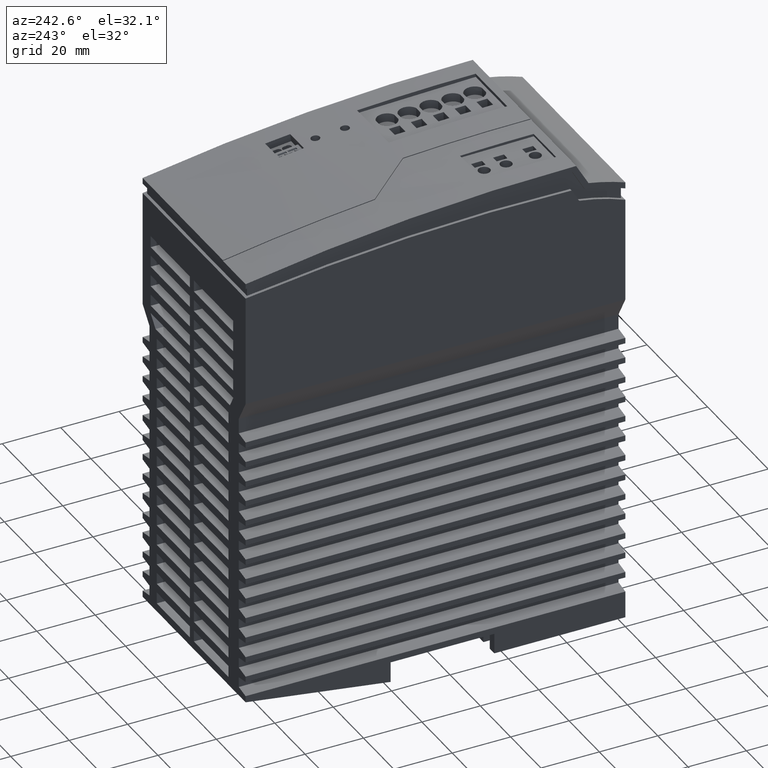
[diagram: clean part render]
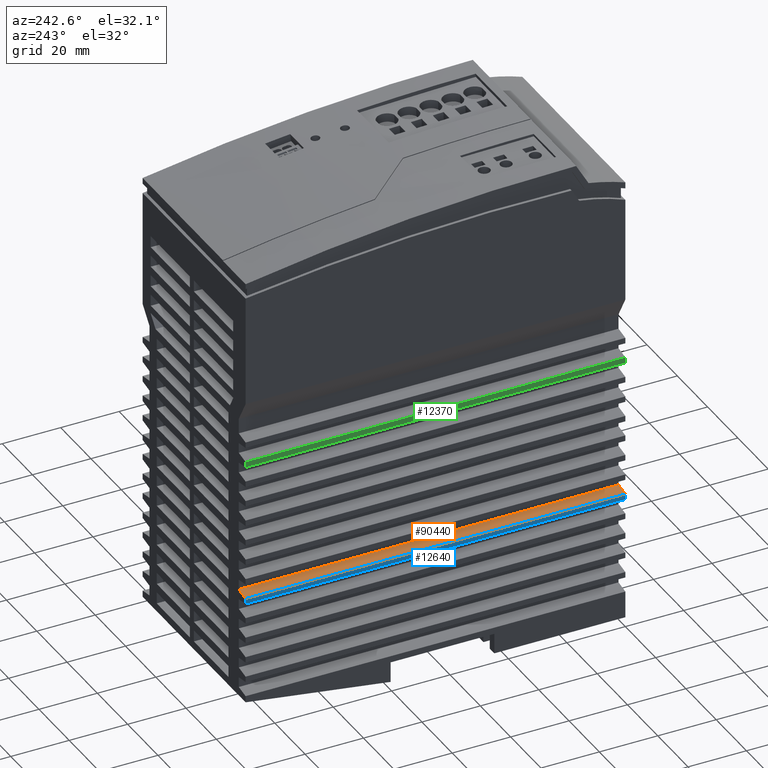
[diagram: same view with three faces highlighted in distinct colors, each labeled with its STEP entity id]
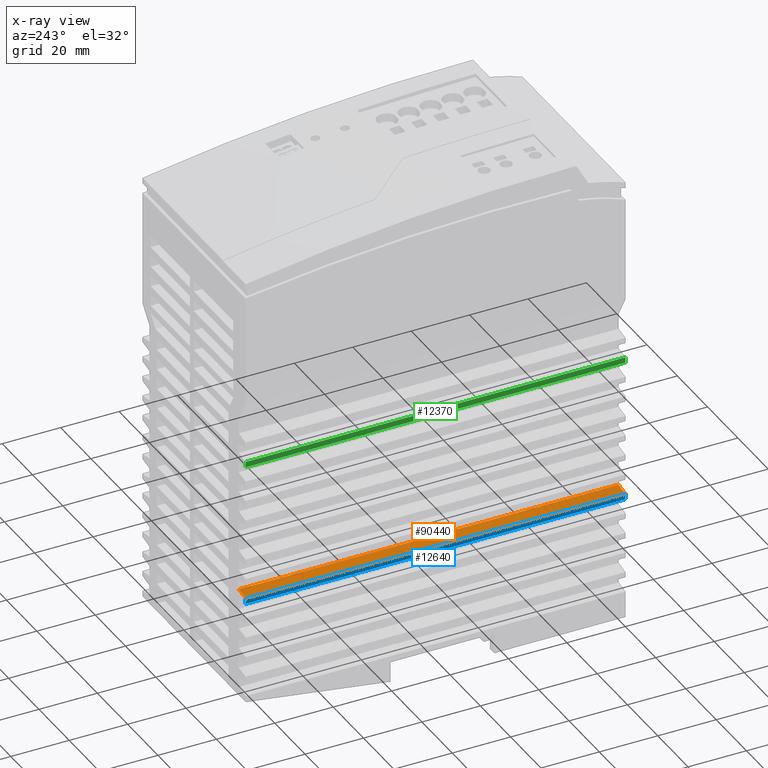
[diagram: x-ray of the same camera — body ghosted, the three highlighted faces saturated]
A machine part, auxiliary view with three faces highlighted in distinct colors.
The next image is the same camera in x-ray (body ghosted, the three faces saturated) — at least one of them is partly hidden behind the body in this view.
Their STEP definitions:

[orange] entity #90440 — the highlighted planar face has unit normal (0.1736, -0, -0.9848).
#12400=CARTESIAN_POINT('',(37.2065285868116,130.,4.5));
#12410=VERTEX_POINT('',#12400);
#12440=CARTESIAN_POINT('',(37.2065285868116,64.9999998943551,4.5));
#12450=DIRECTION('',(0.,-1.,0.));
#12460=VECTOR('',#12450,1.);
#12470=LINE('',#12440,#12460);
#12480=CARTESIAN_POINT('',(37.2065285868116,0.,4.5));
#12490=VERTEX_POINT('',#12480);
#12500=EDGE_CURVE('',#12410,#12490,#12470,.T.);
#64070=CARTESIAN_POINT('',(37.2065285868116,0.,4.5));
#64080=DIRECTION('',(0.173648177666902,0.,-0.984807753012213));
#64090=VECTOR('',#64080,1.);
#64100=LINE('',#64070,#64090);
#64110=CARTESIAN_POINT('',(37.9999999999996,0.,-2.66453525910038E-15));
#64120=VERTEX_POINT('',#64110);
#64130=EDGE_CURVE('',#12490,#64120,#64100,.T.);
#81120=CARTESIAN_POINT('',(37.9999999999996,130.,-2.66453525910038E-15))
;
#81130=VERTEX_POINT('',#81120);
#81160=CARTESIAN_POINT('',(37.2065285868116,130.,4.5));
#81170=DIRECTION('',(0.173648177666902,0.,-0.984807753012213));
#81180=VECTOR('',#81170,1.);
#81190=LINE('',#81160,#81180);
#81200=EDGE_CURVE('',#12410,#81130,#81190,.T.);
#90280=CARTESIAN_POINT('',(36.4004740147166,-13.0000024000001,
9.07136264034296));
#90290=DIRECTION('',(-0.984807753012213,-0.,-0.173648177666902));
#90300=DIRECTION('',(0.173648177666902,0.,-0.984807753012213));
#90310=AXIS2_PLACEMENT_3D('',#90280,#90290,#90300);
#90320=PLANE('',#90310);
#90330=ORIENTED_EDGE('',*,*,#81200,.F.);
#90340=CARTESIAN_POINT('',(37.9999999999996,-13.0000024000001,0.));
#90350=DIRECTION('',(0.,1.,0.));
#90360=VECTOR('',#90350,1.);
#90370=LINE('',#90340,#90360);
#90380=EDGE_CURVE('',#64120,#81130,#90370,.T.);
#90390=ORIENTED_EDGE('',*,*,#90380,.T.);
#90400=ORIENTED_EDGE('',*,*,#64130,.T.);
#90410=ORIENTED_EDGE('',*,*,#12500,.T.);
#90420=EDGE_LOOP('',(#90410,#90400,#90390,#90330));
#90430=FACE_OUTER_BOUND('',#90420,.T.);
#90440=ADVANCED_FACE('',(#90430),#90320,.F.);

[blue] entity #12640 — the highlighted planar face has unit normal (-1, 0, 0).
#10=CARTESIAN_POINT('',(106.9903810568,0.,4.5));
#20=DIRECTION('',(0.,0.,1.));
#30=DIRECTION('',(1.,0.,0.));
#40=AXIS2_PLACEMENT_3D('',#10,#20,#30);
#50=PLANE('',#40);
#400=CARTESIAN_POINT('',(128.90472881771,130.,4.5));
#410=DIRECTION('',(1.,0.,0.));
#420=VECTOR('',#410,1.);
#430=LINE('',#400,#420);
#560=CARTESIAN_POINT('',(128.90472881771,0.,4.5));
#570=DIRECTION('',(1.,0.,0.));
#580=VECTOR('',#570,1.);
#590=LINE('',#560,#580);
#12380=CARTESIAN_POINT('',(35.2800000000002,130.,4.5));
#12390=VERTEX_POINT('',#12380);
#12400=CARTESIAN_POINT('',(37.2065285868116,130.,4.5));
#12410=VERTEX_POINT('',#12400);
#12420=EDGE_CURVE('',#12390,#12410,#430,.T.);
#12430=ORIENTED_EDGE('',*,*,#12420,.F.);
#12440=CARTESIAN_POINT('',(37.2065285868116,64.9999998943551,4.5));
#12450=DIRECTION('',(0.,-1.,0.));
#12460=VECTOR('',#12450,1.);
#12470=LINE('',#12440,#12460);
#12480=CARTESIAN_POINT('',(37.2065285868116,0.,4.5));
#12490=VERTEX_POINT('',#12480);
#12500=EDGE_CURVE('',#12410,#12490,#12470,.T.);
#12510=ORIENTED_EDGE('',*,*,#12500,.F.);
#12520=CARTESIAN_POINT('',(35.2800000000002,0.,4.5));
#12530=VERTEX_POINT('',#12520);
#12540=EDGE_CURVE('',#12530,#12490,#590,.T.);
#12550=ORIENTED_EDGE('',*,*,#12540,.T.);
#12560=CARTESIAN_POINT('',(35.2800000000002,64.9999998943551,4.5));
#12570=DIRECTION('',(0.,1.,0.));
#12580=VECTOR('',#12570,1.);
#12590=LINE('',#12560,#12580);
#12600=EDGE_CURVE('',#12530,#12390,#12590,.T.);
#12610=ORIENTED_EDGE('',*,*,#12600,.F.);
#12620=EDGE_LOOP('',(#12610,#12550,#12510,#12430));
#12630=FACE_OUTER_BOUND('',#12620,.T.);
#12640=ADVANCED_FACE('',(#12630),#50,.T.);

[green] entity #12370 — the highlighted planar face has unit normal (-1, 0, 0).
#10=CARTESIAN_POINT('',(106.9903810568,0.,4.5));
#20=DIRECTION('',(0.,0.,1.));
#30=DIRECTION('',(1.,0.,0.));
#40=AXIS2_PLACEMENT_3D('',#10,#20,#30);
#50=PLANE('',#40);
#400=CARTESIAN_POINT('',(128.90472881771,130.,4.5));
#410=DIRECTION('',(1.,0.,0.));
#420=VECTOR('',#410,1.);
#430=LINE('',#400,#420);
#560=CARTESIAN_POINT('',(128.90472881771,0.,4.5));
#570=DIRECTION('',(1.,0.,0.));
#580=VECTOR('',#570,1.);
#590=LINE('',#560,#580);
#12110=CARTESIAN_POINT('',(84.2800000000002,130.,4.5));
#12120=VERTEX_POINT('',#12110);
#12130=CARTESIAN_POINT('',(86.2065285868116,130.,4.5));
#12140=VERTEX_POINT('',#12130);
#12150=EDGE_CURVE('',#12120,#12140,#430,.T.);
#12160=ORIENTED_EDGE('',*,*,#12150,.F.);
#12170=CARTESIAN_POINT('',(86.2065285868116,64.9999998943551,4.5));
#12180=DIRECTION('',(0.,-1.,0.));
#12190=VECTOR('',#12180,1.);
#12200=LINE('',#12170,#12190);
#12210=CARTESIAN_POINT('',(86.2065285868116,0.,4.5));
#12220=VERTEX_POINT('',#12210);
#12230=EDGE_CURVE('',#12140,#12220,#12200,.T.);
#12240=ORIENTED_EDGE('',*,*,#12230,.F.);
#12250=CARTESIAN_POINT('',(84.2800000000002,0.,4.5));
#12260=VERTEX_POINT('',#12250);
#12270=EDGE_CURVE('',#12260,#12220,#590,.T.);
#12280=ORIENTED_EDGE('',*,*,#12270,.T.);
#12290=CARTESIAN_POINT('',(84.2800000000002,64.9999998943551,4.5));
#12300=DIRECTION('',(0.,1.,0.));
#12310=VECTOR('',#12300,1.);
#12320=LINE('',#12290,#12310);
#12330=EDGE_CURVE('',#12260,#12120,#12320,.T.);
#12340=ORIENTED_EDGE('',*,*,#12330,.F.);
#12350=EDGE_LOOP('',(#12340,#12280,#12240,#12160));
#12360=FACE_OUTER_BOUND('',#12350,.T.);
#12370=ADVANCED_FACE('',(#12360),#50,.T.);